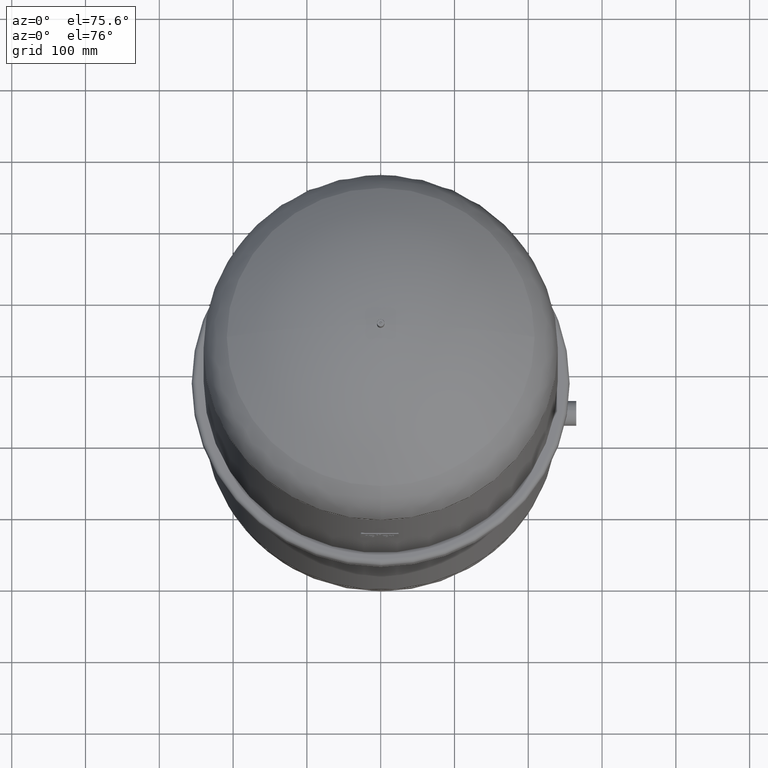
[diagram: clean part render]
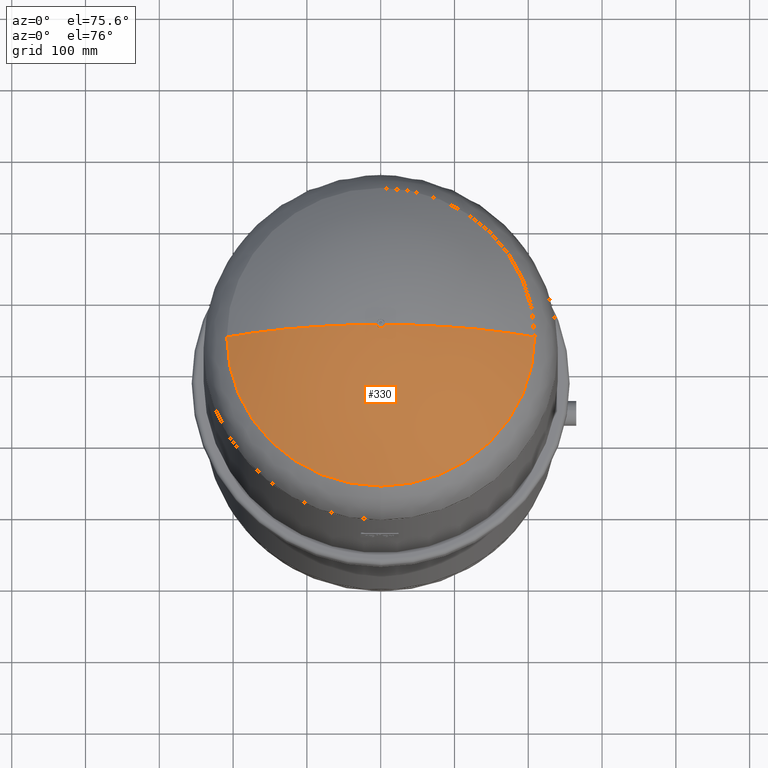
[diagram: same view with one face highlighted and labeled with its STEP entity id]
A machine part, auxiliary view. The second image highlights one B-rep face of the part: STEP entity #330.
In plain terms, the highlighted spherical surface has radius 354 mm.
Its self-contained STEP definition (entity closure, byte-faithful):
#250=CARTESIAN_POINT('',(0.0,-208.57297297297296,591.03026928144413));
#251=VERTEX_POINT('',#250);
#278=CARTESIAN_POINT('',(208.57297297297296,-6.502875E-014,591.03026928144413));
#279=VERTEX_POINT('',#278);
#287=CARTESIAN_POINT('',(0.0,-1.248584E-014,591.03026928144413));
#288=DIRECTION('',(0.0,0.0,1.0));
#289=DIRECTION('',(-1.0,0.0,0.0));
#290=AXIS2_PLACEMENT_3D('',#287,#288,#289);
#291=CIRCLE('',#290,208.57297297297296);
#292=EDGE_CURVE('',#251,#279,#291,.T.);
#297=CARTESIAN_POINT('',(0.0,-6.502875E-014,305.0));
#298=DIRECTION('',(0.0,0.0,1.0));
#299=DIRECTION('',(1.0,0.0,0.0));
#300=AXIS2_PLACEMENT_3D('',#297,#298,#299);
#301=SPHERICAL_SURFACE('',#300,354.0);
#302=CARTESIAN_POINT('',(-2.167553E-014,-6.502875E-014,659.0));
#303=VERTEX_POINT('',#302);
#304=CARTESIAN_POINT('',(0.0,-6.502875E-014,305.0));
#305=DIRECTION('',(0.0,1.0,0.0));
#306=DIRECTION('',(1.0,0.0,0.0));
#307=AXIS2_PLACEMENT_3D('',#304,#305,#306);
#308=CIRCLE('',#307,354.0);
#309=EDGE_CURVE('',#303,#279,#308,.T.);
#310=ORIENTED_EDGE('',*,*,#309,.F.);
#311=CARTESIAN_POINT('',(-208.57297297297296,-1.248584E-014,591.03026928144413));
#312=VERTEX_POINT('',#311);
#313=CARTESIAN_POINT('',(0.0,-6.502875E-014,305.0));
#314=DIRECTION('',(0.0,-1.0,0.0));
#315=DIRECTION('',(-1.0,0.0,0.0));
#316=AXIS2_PLACEMENT_3D('',#313,#314,#315);
#317=CIRCLE('',#316,354.0);
#318=EDGE_CURVE('',#303,#312,#317,.T.);
#319=ORIENTED_EDGE('',*,*,#318,.T.);
#320=CARTESIAN_POINT('',(0.0,-1.248584E-014,591.03026928144413));
#321=DIRECTION('',(0.0,0.0,1.0));
#322=DIRECTION('',(-1.0,0.0,0.0));
#323=AXIS2_PLACEMENT_3D('',#320,#321,#322);
#324=CIRCLE('',#323,208.57297297297296);
#325=EDGE_CURVE('',#312,#251,#324,.T.);
#326=ORIENTED_EDGE('',*,*,#325,.T.);
#327=ORIENTED_EDGE('',*,*,#292,.T.);
#328=EDGE_LOOP('',(#310,#319,#326,#327));
#329=FACE_OUTER_BOUND('',#328,.T.);
#330=ADVANCED_FACE('',(#329),#301,.T.);